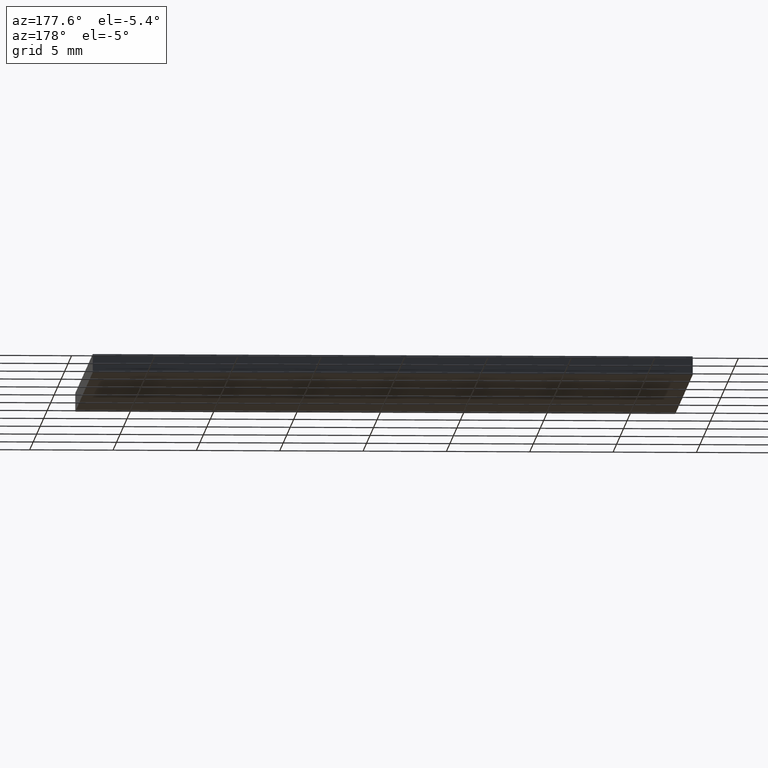
[diagram: clean part render]
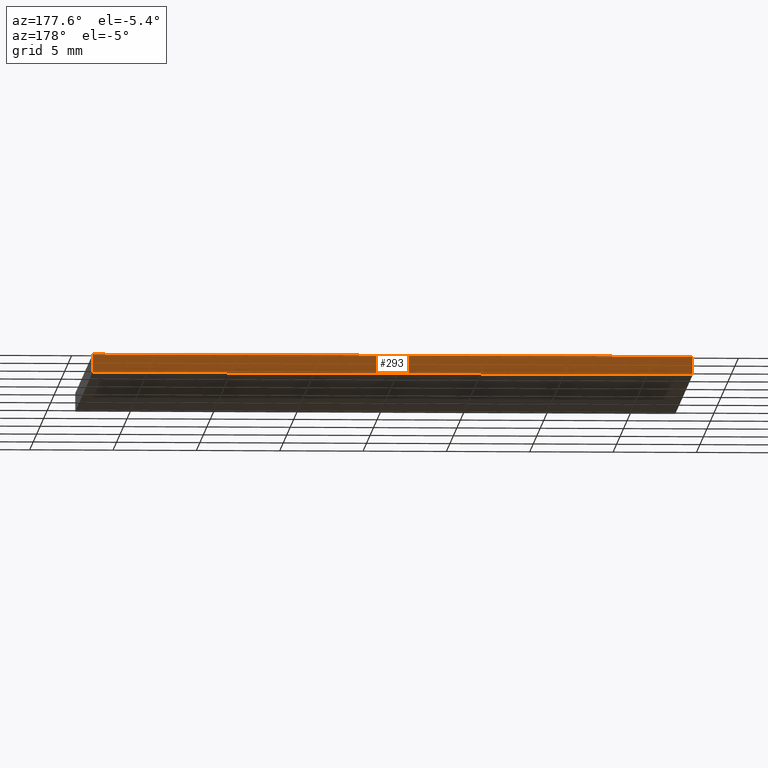
[diagram: same view with one face highlighted and labeled with its STEP entity id]
A machine part, auxiliary view. The second image highlights one B-rep face of the part: STEP entity #293.
In plain terms, the highlighted planar face has unit normal (0, -1, 0).
Its self-contained STEP definition (entity closure, byte-faithful):
#7 = LINE ( 'NONE', #42, #259 ) ;
#10 = VECTOR ( 'NONE', #262, 1000.000000000000000 ) ;
#13 = CARTESIAN_POINT ( 'NONE',  ( 17.99999999999999600, 12.49999999999999600, 0.0000000000000000000 ) ) ;
#17 = DIRECTION ( 'NONE',  ( 0.0000000000000000000, -1.000000000000000000, 0.0000000000000000000 ) ) ;
#32 = CARTESIAN_POINT ( 'NONE',  ( -18.00000000000000400, 12.49999999999999600, 0.0000000000000000000 ) ) ;
#35 = VECTOR ( 'NONE', #232, 1000.000000000000000 ) ;
#42 = CARTESIAN_POINT ( 'NONE',  ( -18.00000000000000400, 12.49999999999999600, 1.100000000000000100 ) ) ;
#51 = ORIENTED_EDGE ( 'NONE', *, *, #246, .F. ) ;
#62 = CARTESIAN_POINT ( 'NONE',  ( 17.99999999999999600, 12.49999999999999600, 1.100000000000000100 ) ) ;
#78 = VERTEX_POINT ( 'NONE', #32 ) ;
#80 = VERTEX_POINT ( 'NONE', #161 ) ;
#84 = EDGE_CURVE ( 'NONE', #113, #78, #101, .T. ) ;
#89 = EDGE_CURVE ( 'NONE', #254, #113, #225, .T. ) ;
#90 = CARTESIAN_POINT ( 'NONE',  ( -18.00000000000000400, 12.49999999999999600, 1.100000000000000100 ) ) ;
#101 = LINE ( 'NONE', #208, #35 ) ;
#106 = FACE_OUTER_BOUND ( 'NONE', #195, .T. ) ;
#113 = VERTEX_POINT ( 'NONE', #13 ) ;
#115 = DIRECTION ( 'NONE',  ( 0.0000000000000000000, -0.0000000000000000000, -1.000000000000000000 ) ) ;
#142 = ORIENTED_EDGE ( 'NONE', *, *, #89, .T. ) ;
#161 = CARTESIAN_POINT ( 'NONE',  ( -18.00000000000000400, 12.49999999999999600, 1.100000000000000100 ) ) ;
#165 = DIRECTION ( 'NONE',  ( -0.0000000000000000000, -0.0000000000000000000, -1.000000000000000000 ) ) ;
#169 = CARTESIAN_POINT ( 'NONE',  ( -18.00000000000000400, 12.49999999999999600, 1.100000000000000100 ) ) ;
#175 = VECTOR ( 'NONE', #165, 1000.000000000000000 ) ;
#195 = EDGE_LOOP ( 'NONE', ( #298, #51, #202, #142 ) ) ;
#202 = ORIENTED_EDGE ( 'NONE', *, *, #273, .F. ) ;
#208 = CARTESIAN_POINT ( 'NONE',  ( -18.00000000000000400, 12.49999999999999600, 0.0000000000000000000 ) ) ;
#215 = PLANE ( 'NONE',  #242 ) ;
#220 = LINE ( 'NONE', #90, #10 ) ;
#225 = LINE ( 'NONE', #62, #175 ) ;
#232 = DIRECTION ( 'NONE',  ( -1.000000000000000000, -0.0000000000000000000, -0.0000000000000000000 ) ) ;
#234 = CARTESIAN_POINT ( 'NONE',  ( 17.99999999999999600, 12.49999999999999600, 1.100000000000000100 ) ) ;
#240 = DIRECTION ( 'NONE',  ( -0.0000000000000000000, -0.0000000000000000000, -1.000000000000000000 ) ) ;
#242 = AXIS2_PLACEMENT_3D ( 'NONE', #169, #17, #115 ) ;
#246 = EDGE_CURVE ( 'NONE', #80, #78, #7, .T. ) ;
#254 = VERTEX_POINT ( 'NONE', #234 ) ;
#259 = VECTOR ( 'NONE', #240, 1000.000000000000000 ) ;
#262 = DIRECTION ( 'NONE',  ( -1.000000000000000000, -0.0000000000000000000, -0.0000000000000000000 ) ) ;
#273 = EDGE_CURVE ( 'NONE', #254, #80, #220, .T. ) ;
#293 = ADVANCED_FACE ( 'NONE', ( #106 ), #215, .F. ) ;
#298 = ORIENTED_EDGE ( 'NONE', *, *, #84, .T. ) ;